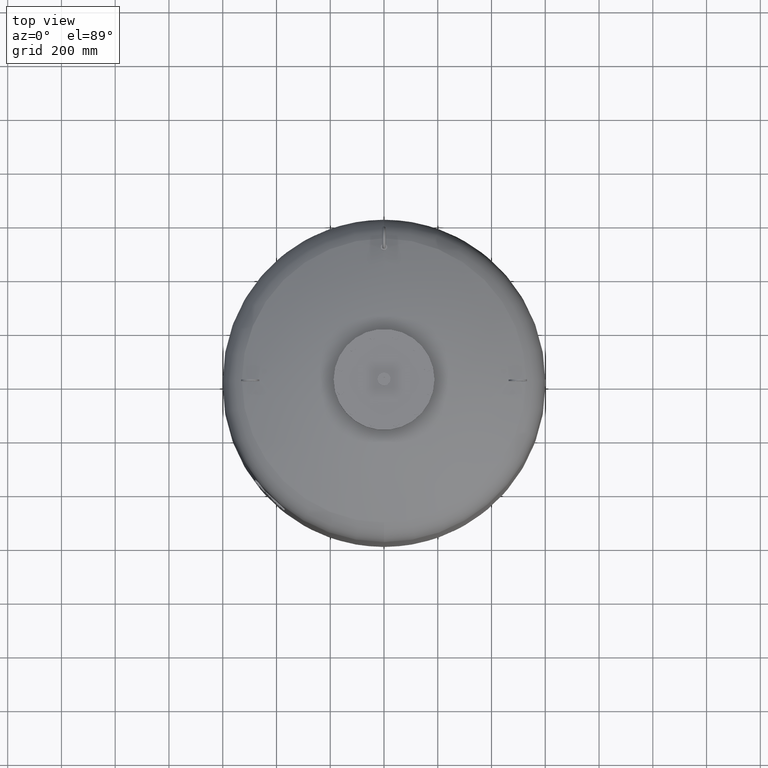
[diagram: clean part render]
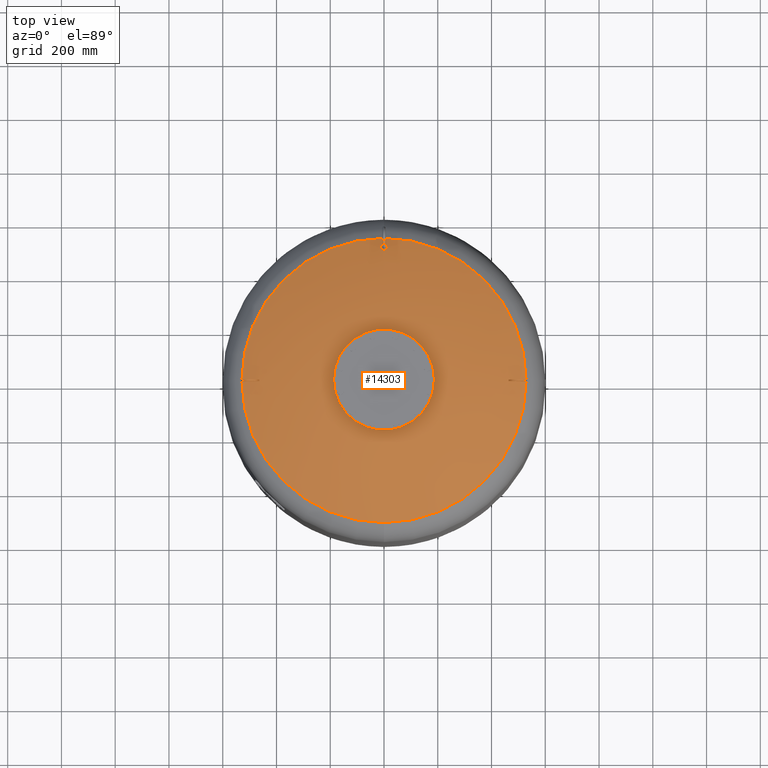
[diagram: same view with one face highlighted and labeled with its STEP entity id]
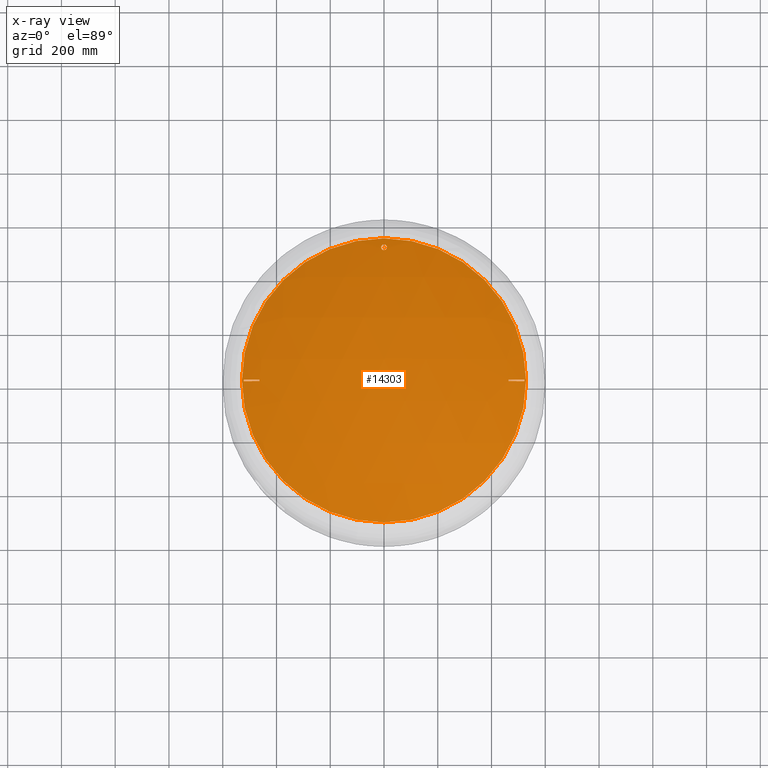
[diagram: x-ray of the same camera — body ghosted, the highlighted face saturated]
A machine part, top view. The second image highlights one B-rep face of the part: STEP entity #14303.
The next image is the same camera in x-ray: the body ghosted, the highlighted face saturated — about 0% of this face is hidden behind the body in this view.
In plain terms, the highlighted spherical surface has radius 1207 mm.
Its self-contained STEP definition (entity closure, byte-faithful):
#13595=CARTESIAN_POINT('',(3.894773E-014,-528.621296296296240,1818.084570483805000));
#13596=VERTEX_POINT('',#13595);
#13612=CARTESIAN_POINT('',(1.036830E-013,528.621296296296240,1818.084570483805000));
#13613=VERTEX_POINT('',#13612);
#13621=CARTESIAN_POINT('',(528.621296296296240,-2.239550E-014,1818.084570483805000));
#13622=VERTEX_POINT('',#13621);
#13623=CARTESIAN_POINT('',(3.410787E-015,-2.239550E-014,1818.084570483805000));
#13624=DIRECTION('',(0.0,0.0,-1.0));
#13625=DIRECTION('',(1.0,0.0,0.0));
#13626=AXIS2_PLACEMENT_3D('',#13623,#13624,#13625);
#13627=CIRCLE('',#13626,528.621296296296240);
#13628=EDGE_CURVE('',#13613,#13622,#13627,.T.);
#13630=CARTESIAN_POINT('',(3.410787E-015,-2.239550E-014,1818.084570483805000));
#13631=DIRECTION('',(0.0,0.0,-1.0));
#13632=DIRECTION('',(1.0,0.0,0.0));
#13633=AXIS2_PLACEMENT_3D('',#13630,#13631,#13632);
#13634=CIRCLE('',#13633,528.621296296296240);
#13635=EDGE_CURVE('',#13622,#13596,#13634,.T.);
#13752=CARTESIAN_POINT('',(-2.007040E-015,505.649999999999860,1828.977681113990700));
#13753=VERTEX_POINT('',#13752);
#13769=CARTESIAN_POINT('',(-1.264167E-015,484.349999999999910,1838.556003782712200));
#13770=VERTEX_POINT('',#13769);
#13777=CARTESIAN_POINT('',(-2.007040E-015,505.649999999999860,1828.977681113990700));
#13778=CARTESIAN_POINT('',(0.665662584297549,505.649999999999860,1828.977681113990700));
#13779=CARTESIAN_POINT('',(1.351770687093055,505.586540768528720,1829.006343822394000));
#13780=CARTESIAN_POINT('',(2.711440963249272,505.322316471514680,1829.125671514436600));
#13781=CARTESIAN_POINT('',(3.385018268838315,505.121615967431920,1829.216307020834800));
#13782=CARTESIAN_POINT('',(4.671659030031331,504.595887700676490,1829.453675611560400));
#13783=CARTESIAN_POINT('',(5.285911664195235,504.270411104392170,1829.600610399233600));
#13784=CARTESIAN_POINT('',(6.417878505985882,503.525973237725340,1829.936594437422400));
#13785=CARTESIAN_POINT('',(6.935591451669527,503.107009891746090,1830.125643340669500));
#13786=CARTESIAN_POINT('',(7.899179737395372,502.177760642695380,1830.544825043460200));
#13787=CARTESIAN_POINT('',(8.368086172563061,501.627357286810370,1830.793043409988300));
#13788=CARTESIAN_POINT('',(9.188061671035127,500.433806541515650,1831.331089151719900));
#13789=CARTESIAN_POINT('',(9.539219073899449,499.790709135051770,1831.620892770933300));
#13790=CARTESIAN_POINT('',(10.100224561864263,498.454426017124770,1832.222810133959700));
#13791=CARTESIAN_POINT('',(10.310462392525917,497.760351114898870,1832.535323620084000));
#13792=CARTESIAN_POINT('',(10.585380396556634,496.369268012084210,1833.161397323186300));
#13793=CARTESIAN_POINT('',(10.650000000000000,495.672249771665920,1833.474961828124200));
#13794=CARTESIAN_POINT('',(10.650000000000000,494.328136578031490,1834.079385679025300));
#13795=CARTESIAN_POINT('',(10.585453694089722,493.631410911690520,1834.392563213996700));
#13796=CARTESIAN_POINT('',(10.310736765036932,492.240729558734190,1835.017401333808700));
#13797=CARTESIAN_POINT('',(10.100625147679906,491.546764270494350,1835.329066489736500));
#13798=CARTESIAN_POINT('',(9.539857037879536,490.210574780593110,1835.928918118605900));
#13799=CARTESIAN_POINT('',(9.188808647865375,489.567459190703400,1836.217505560420200));
#13800=CARTESIAN_POINT('',(8.369020497877592,488.373824638455520,1836.752944631033400));
#13801=CARTESIAN_POINT('',(7.900192687897295,487.823356474835290,1836.999774688893900));
#13802=CARTESIAN_POINT('',(6.936540506419655,486.893778895747120,1837.416486438550200));
#13803=CARTESIAN_POINT('',(6.418662963042111,486.474599944024530,1837.604341560041300));
#13804=CARTESIAN_POINT('',(5.286383442477856,485.729841940405380,1837.938035283821800));
#13805=CARTESIAN_POINT('',(4.671983453209442,485.404260841614930,1838.083876063063600));
#13806=CARTESIAN_POINT('',(3.385112822109917,484.878406691485680,1838.319396709681300));
#13807=CARTESIAN_POINT('',(2.711455124781848,484.677684778344370,1838.409278534069900));
#13808=CARTESIAN_POINT('',(1.351712007087142,484.413449330400060,1838.527596291778100));
#13809=CARTESIAN_POINT('',(0.665611636080549,484.349999999999910,1838.556003782712200));
#13810=CARTESIAN_POINT('',(-1.264167E-015,484.349999999999910,1838.556003782712200));
#13811=B_SPLINE_CURVE_WITH_KNOTS('',3,(#13777,#13778,#13779,#13780,#13781,#13782,#13783,#13784,#13785,#13786,#13787,#13788,#13789,#13790,#13791,#13792,#13793,#13794,#13795,#13796,#13797,#13798,#13799,#13800,#13801,#13802,#13803,#13804,#13805,#13806,#13807,#13808,#13809,#13810),.UNSPECIFIED.,.F.,.U.,(4,2,2,2,2,2,2,2,2,2,2,2,2,2,2,2,4),(0.0,1.996987752892652,3.993975505785304,5.990963258677956,7.987951011570608,10.199226399313966,12.410501787057324,14.621777174800682,16.833052562544040,19.043057104816825,21.253061647089609,23.463066189362394,25.673070731635178,27.669905639876831,29.666740548118483,31.663575456360135,33.660410364601788),.UNSPECIFIED.);
#13812=EDGE_CURVE('',#13753,#13770,#13811,.T.);
#13823=CARTESIAN_POINT('',(-1.264167E-015,484.349999999999910,1838.556003782712200));
#13824=CARTESIAN_POINT('',(-0.665611636080552,484.349999999999910,1838.556003782712200));
#13825=CARTESIAN_POINT('',(-1.351712007087143,484.413449330400060,1838.527596291778100));
#13826=CARTESIAN_POINT('',(-2.711455124781850,484.677684778344370,1838.409278534069900));
#13827=CARTESIAN_POINT('',(-3.385112822109919,484.878406691485680,1838.319396709681300));
#13828=CARTESIAN_POINT('',(-4.671983453209444,485.404260841614930,1838.083876063063600));
#13829=CARTESIAN_POINT('',(-5.286383442477860,485.729841940405380,1837.938035283821800));
#13830=CARTESIAN_POINT('',(-6.418662963042113,486.474599944024530,1837.604341560041300));
#13831=CARTESIAN_POINT('',(-6.936540506419650,486.893778895747120,1837.416486438550200));
#13832=CARTESIAN_POINT('',(-7.900192687897292,487.823356474835290,1836.999774688893900));
#13833=CARTESIAN_POINT('',(-8.369020497877603,488.373824638455520,1836.752944631033400));
#13834=CARTESIAN_POINT('',(-9.188808647865416,489.567459190703400,1836.217505560420200));
#13835=CARTESIAN_POINT('',(-9.539857037879596,490.210574780593220,1835.928918118605900));
#13836=CARTESIAN_POINT('',(-10.100625147679949,491.546764270494460,1835.329066489736500));
#13837=CARTESIAN_POINT('',(-10.310736765036959,492.240729558734240,1835.017401333808500));
#13838=CARTESIAN_POINT('',(-10.585453694089725,493.631410911690520,1834.392563213996500));
#13839=CARTESIAN_POINT('',(-10.650000000000004,494.328136578031490,1834.079385679025300));
#13840=CARTESIAN_POINT('',(-10.650000000000004,495.672249771665860,1833.474961828124200));
#13841=CARTESIAN_POINT('',(-10.585380396556637,496.369268012084210,1833.161397323186300));
#13842=CARTESIAN_POINT('',(-10.310462392525912,497.760351114898920,1832.535323620084000));
#13843=CARTESIAN_POINT('',(-10.100224561864266,498.454426017124770,1832.222810133959700));
#13844=CARTESIAN_POINT('',(-9.539219073899460,499.790709135051770,1831.620892770933300));
#13845=CARTESIAN_POINT('',(-9.188061671035145,500.433806541515590,1831.331089151719900));
#13846=CARTESIAN_POINT('',(-8.368086172563105,501.627357286810200,1830.793043409988300));
#13847=CARTESIAN_POINT('',(-7.899179737395371,502.177760642695380,1830.544825043460400));
#13848=CARTESIAN_POINT('',(-6.935591451669527,503.107009891746090,1830.125643340669700));
#13849=CARTESIAN_POINT('',(-6.417878505985903,503.525973237725280,1829.936594437422400));
#13850=CARTESIAN_POINT('',(-5.285911664195240,504.270411104392170,1829.600610399233600));
#13851=CARTESIAN_POINT('',(-4.671659030031345,504.595887700676490,1829.453675611560400));
#13852=CARTESIAN_POINT('',(-3.385018268838326,505.121615967431920,1829.216307020834800));
#13853=CARTESIAN_POINT('',(-2.711440963249284,505.322316471514680,1829.125671514436600));
#13854=CARTESIAN_POINT('',(-1.351770687093066,505.586540768528720,1829.006343822394000));
#13855=CARTESIAN_POINT('',(-0.665662584297557,505.649999999999860,1828.977681113990700));
#13856=CARTESIAN_POINT('',(-2.007040E-015,505.649999999999860,1828.977681113990700));
#13857=B_SPLINE_CURVE_WITH_KNOTS('',3,(#13823,#13824,#13825,#13826,#13827,#13828,#13829,#13830,#13831,#13832,#13833,#13834,#13835,#13836,#13837,#13838,#13839,#13840,#13841,#13842,#13843,#13844,#13845,#13846,#13847,#13848,#13849,#13850,#13851,#13852,#13853,#13854,#13855,#13856),.UNSPECIFIED.,.F.,.U.,(4,2,2,2,2,2,2,2,2,2,2,2,2,2,2,2,4),(33.660410364601788,35.657245272843440,37.654080181085092,39.650915089326745,41.647749997568390,43.857754539841181,46.067759082113966,48.277763624386751,50.487768166659535,52.699043554402870,54.910318942146205,57.121594329889540,59.332869717632875,61.329857470525539,63.326845223418196,65.323832976310854,67.320820729203518),.UNSPECIFIED.);
#13858=EDGE_CURVE('',#13770,#13753,#13857,.T.);
#13886=CARTESIAN_POINT('',(-463.451600218966230,-3.000000000000292,1847.474142479079300));
#13887=VERTEX_POINT('',#13886);
#13888=CARTESIAN_POINT('',(-521.618748390259610,-2.999999999999862,1821.464000933324300));
#13889=VERTEX_POINT('',#13888);
#13890=CARTESIAN_POINT('',(1.015543E-013,-3.000000000004973,733.0));
#13891=DIRECTION('',(0.0,-1.0,0.0));
#13892=DIRECTION('',(0.0,0.0,1.0));
#13893=AXIS2_PLACEMENT_3D('',#13890,#13891,#13892);
#13894=CIRCLE('',#13893,1206.996271742378000);
#13895=EDGE_CURVE('',#13887,#13889,#13894,.T.);
#13938=CARTESIAN_POINT('',(-463.451600218966290,2.999999999999727,1847.474142479079500));
#13939=VERTEX_POINT('',#13938);
#13940=CARTESIAN_POINT('',(-143.673995061822890,7.801844E-013,693.196972395375950));
#13941=DIRECTION('',(0.963701753162816,-6.720348E-015,0.266981143436978));
#13942=DIRECTION('',(-0.266981143436977,0.0,0.963701753162815));
#13943=AXIS2_PLACEMENT_3D('',#13940,#13941,#13942);
#13944=CIRCLE('',#13943,1197.757280143385700);
#13945=EDGE_CURVE('',#13939,#13887,#13944,.T.);
#13988=CARTESIAN_POINT('',(-521.618748390259730,3.000000000000095,1821.464000933324100));
#13989=VERTEX_POINT('',#13988);
#13990=CARTESIAN_POINT('',(-204.387205511080400,1.203566E-012,676.377160358846370));
#13991=DIRECTION('',(-0.963701753162815,6.720348E-015,-0.266981143436977));
#13992=DIRECTION('',(0.266981143436977,0.0,-0.963701753162815));
#13993=AXIS2_PLACEMENT_3D('',#13990,#13991,#13992);
#13994=CIRCLE('',#13993,1188.220823018324600);
#13995=EDGE_CURVE('',#13889,#13989,#13994,.T.);
#14020=CARTESIAN_POINT('',(1.458865E-013,2.999999999995042,733.0));
#14021=DIRECTION('',(0.0,1.0,0.0));
#14022=DIRECTION('',(0.0,0.0,-1.0));
#14023=AXIS2_PLACEMENT_3D('',#14020,#14021,#14022);
#14024=CIRCLE('',#14023,1206.996271742378000);
#14025=EDGE_CURVE('',#13989,#13939,#14024,.T.);
#14060=CARTESIAN_POINT('',(463.451600218966350,2.999999999999727,1847.474142479079800));
#14061=VERTEX_POINT('',#14060);
#14062=CARTESIAN_POINT('',(521.618748390259730,3.000000000000095,1821.464000933324300));
#14063=VERTEX_POINT('',#14062);
#14064=CARTESIAN_POINT('',(1.015543E-013,2.999999999995042,733.0));
#14065=DIRECTION('',(0.0,1.0,0.0));
#14066=DIRECTION('',(0.0,0.0,-1.0));
#14067=AXIS2_PLACEMENT_3D('',#14064,#14065,#14066);
#14068=CIRCLE('',#14067,1206.996271742378000);
#14069=EDGE_CURVE('',#14061,#14063,#14068,.T.);
#14112=CARTESIAN_POINT('',(463.451600218966230,-3.000000000000292,1847.474142479079300));
#14113=VERTEX_POINT('',#14112);
#14114=CARTESIAN_POINT('',(143.673995061822890,7.801844E-013,693.196972395375950));
#14115=DIRECTION('',(-0.963701753162816,-6.720348E-015,0.266981143436978));
#14116=DIRECTION('',(-0.266981143436977,0.0,-0.963701753162815));
#14117=AXIS2_PLACEMENT_3D('',#14114,#14115,#14116);
#14118=CIRCLE('',#14117,1197.757280143385700);
#14119=EDGE_CURVE('',#14113,#14061,#14118,.T.);
#14183=CARTESIAN_POINT('',(521.618748390259610,-2.999999999999862,1821.464000933324300));
#14184=VERTEX_POINT('',#14183);
#14185=CARTESIAN_POINT('',(204.387205511080450,1.203566E-012,676.377160358846370));
#14186=DIRECTION('',(0.963701753162815,6.720348E-015,-0.266981143436977));
#14187=DIRECTION('',(0.266981143436977,0.0,0.963701753162815));
#14188=AXIS2_PLACEMENT_3D('',#14185,#14186,#14187);
#14189=CIRCLE('',#14188,1188.220823018324600);
#14190=EDGE_CURVE('',#14063,#14184,#14189,.T.);
#14254=CARTESIAN_POINT('',(1.458865E-013,-3.000000000004973,733.0));
#14255=DIRECTION('',(0.0,-1.0,0.0));
#14256=DIRECTION('',(0.0,0.0,1.0));
#14257=AXIS2_PLACEMENT_3D('',#14254,#14255,#14256);
#14258=CIRCLE('',#14257,1206.996271742378000);
#14259=EDGE_CURVE('',#14184,#14113,#14258,.T.);
#14271=CARTESIAN_POINT('',(1.237204E-013,-2.217223E-013,733.0));
#14272=DIRECTION('',(0.0,-1.0,0.0));
#14273=DIRECTION('',(-1.0,0.0,0.0));
#14274=AXIS2_PLACEMENT_3D('',#14271,#14272,#14273);
#14275=SPHERICAL_SURFACE('',#14274,1207.000000000000200);
#14276=ORIENTED_EDGE('',*,*,#13812,.T.);
#14277=ORIENTED_EDGE('',*,*,#13858,.T.);
#14278=EDGE_LOOP('',(#14276,#14277));
#14279=FACE_OUTER_BOUND('',#14278,.T.);
#14280=ORIENTED_EDGE('',*,*,#13945,.T.);
#14281=ORIENTED_EDGE('',*,*,#13895,.T.);
#14282=ORIENTED_EDGE('',*,*,#13995,.T.);
#14283=ORIENTED_EDGE('',*,*,#14025,.T.);
#14284=EDGE_LOOP('',(#14280,#14281,#14282,#14283));
#14285=FACE_BOUND('',#14284,.T.);
#14286=ORIENTED_EDGE('',*,*,#14119,.T.);
#14287=ORIENTED_EDGE('',*,*,#14069,.T.);
#14288=ORIENTED_EDGE('',*,*,#14190,.T.);
#14289=ORIENTED_EDGE('',*,*,#14259,.T.);
#14290=EDGE_LOOP('',(#14286,#14287,#14288,#14289));
#14291=FACE_BOUND('',#14290,.T.);
#14292=ORIENTED_EDGE('',*,*,#13635,.F.);
#14293=ORIENTED_EDGE('',*,*,#13628,.F.);
#14294=CARTESIAN_POINT('',(3.410787E-015,-2.239550E-014,1818.084570483805000));
#14295=DIRECTION('',(0.0,0.0,-1.0));
#14296=DIRECTION('',(1.0,0.0,0.0));
#14297=AXIS2_PLACEMENT_3D('',#14294,#14295,#14296);
#14298=CIRCLE('',#14297,528.621296296296240);
#14299=EDGE_CURVE('',#13596,#13613,#14298,.T.);
#14300=ORIENTED_EDGE('',*,*,#14299,.F.);
#14301=EDGE_LOOP('',(#14292,#14293,#14300));
#14302=FACE_BOUND('',#14301,.T.);
#14303=ADVANCED_FACE('',(#14279,#14285,#14291,#14302),#14275,.T.);